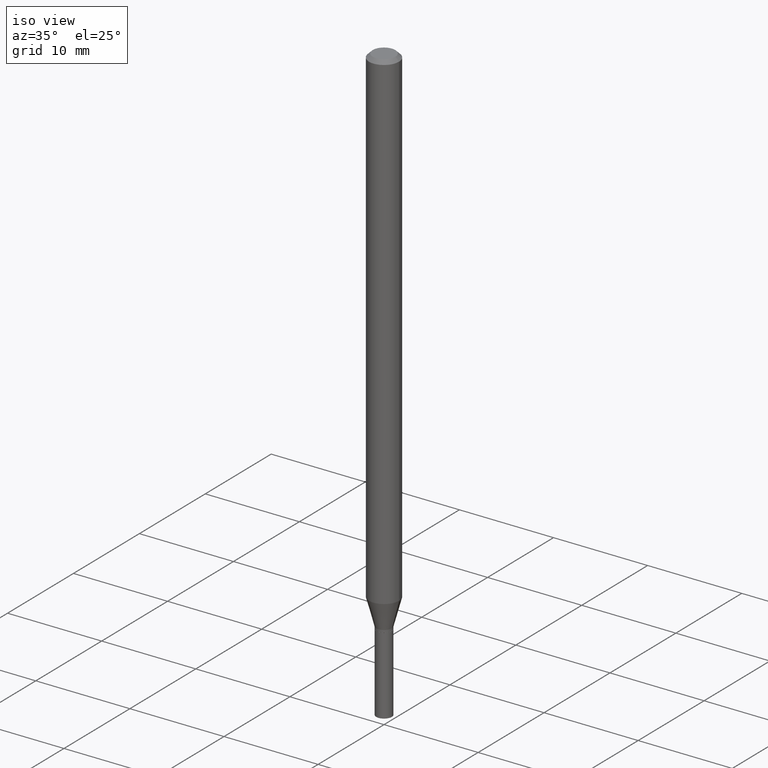
[diagram: clean part render]
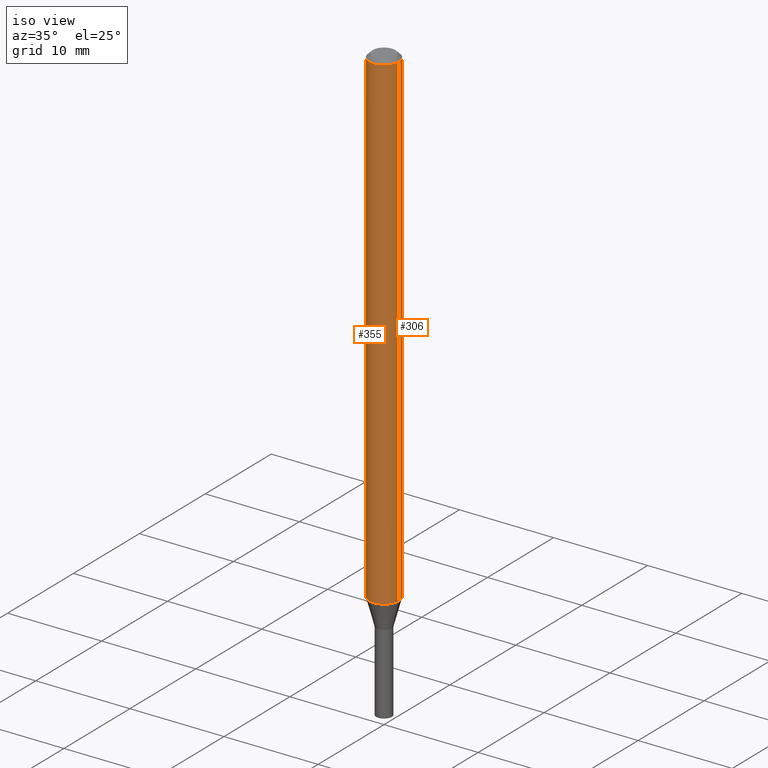
[diagram: same view with one multi-face feature highlighted, each face labeled with its STEP entity id]
A machine part, iso view. The highlighted faces form ONE feature: a constant-radius fillet chain: 2 tangent blend faces with common blend radius 1.5875 mm. The faces share edges in the B-rep.
Their STEP definitions:
[1] entity #306 (Cylinder):
#9 = FACE_OUTER_BOUND ( 'NONE', #294, .T. ) ;
#16 = DIRECTION ( 'NONE',  ( -2.445468806185136597E-29, 3.491481338843145583E-15, 1.000000000000000000 ) ) ;
#18 = EDGE_CURVE ( 'NONE', #178, #339, #29, .T. ) ;
#29 = LINE ( 'NONE', #74, #189 ) ;
#52 = ORIENTED_EDGE ( 'NONE', *, *, #440, .F. ) ;
#74 = CARTESIAN_POINT ( 'NONE',  ( -0.06250000000000000000, 4.440892098500626162E-16, -3.074334431409316114E-30 ) ) ;
#81 = CARTESIAN_POINT ( 'NONE',  ( 0.000000000000000000, 0.000000000000000000, 0.000000000000000000 ) ) ;
#96 = VERTEX_POINT ( 'NONE', #247 ) ;
#113 = CYLINDRICAL_SURFACE ( 'NONE', #458, 0.06250000000000000000 ) ;
#114 = CIRCLE ( 'NONE', #172, 0.06250000000000000000 ) ;
#115 = ORIENTED_EDGE ( 'NONE', *, *, #323, .T. ) ;
#119 = LINE ( 'NONE', #415, #245 ) ;
#124 = CIRCLE ( 'NONE', #246, 0.06250000000000000000 ) ;
#125 = CARTESIAN_POINT ( 'NONE',  ( 3.668203209277705088E-31, -5.237222008264718399E-17, -0.01499999999999999944 ) ) ;
#151 = DIRECTION ( 'NONE',  ( 1.000000000000000000, -6.982962677686262766E-15, 0.000000000000000000 ) ) ;
#160 = DIRECTION ( 'NONE',  ( -2.445468806185136877E-29, 3.491481338843145188E-15, 1.000000000000000000 ) ) ;
#172 = AXIS2_PLACEMENT_3D ( 'NONE', #125, #420, #312 ) ;
#176 = DIRECTION ( 'NONE',  ( -2.445468806185136597E-29, 3.491481338843145583E-15, 1.000000000000000000 ) ) ;
#178 = VERTEX_POINT ( 'NONE', #283 ) ;
#185 = CARTESIAN_POINT ( 'NONE',  ( 0.06250000000000000000, -4.888073874380388472E-16, -0.01499999999999999944 ) ) ;
#189 = VECTOR ( 'NONE', #466, 39.37007874015748143 ) ;
#228 = ORIENTED_EDGE ( 'NONE', *, *, #394, .F. ) ;
#245 = VECTOR ( 'NONE', #160, 39.37007874015748143 ) ;
#246 = AXIS2_PLACEMENT_3D ( 'NONE', #372, #176, #151 ) ;
#247 = CARTESIAN_POINT ( 'NONE',  ( 0.06250000000000000000, -7.604580693443568046E-15, -2.053038475772934746 ) ) ;
#283 = CARTESIAN_POINT ( 'NONE',  ( -0.06250000000000000000, -6.724056316238114549E-15, -2.053038475772934746 ) ) ;
#294 = EDGE_LOOP ( 'NONE', ( #115, #417, #52, #228 ) ) ;
#306 = ADVANCED_FACE ( 'NONE', ( #9 ), #113, .T. ) ;
#312 = DIRECTION ( 'NONE',  ( 1.000000000000000000, -6.982962677686266711E-15, 0.000000000000000000 ) ) ;
#323 = EDGE_CURVE ( 'NONE', #96, #178, #124, .T. ) ;
#339 = VERTEX_POINT ( 'NONE', #365 ) ;
#365 = CARTESIAN_POINT ( 'NONE',  ( -0.06250000000000000000, -3.166169663235349703E-15, -0.01499999999999999944 ) ) ;
#368 = DIRECTION ( 'NONE',  ( 1.000000000000000000, -6.982962677686266711E-15, 4.876176775795935793E-29 ) ) ;
#372 = CARTESIAN_POINT ( 'NONE',  ( 5.020641550400591076E-29, -7.168145526088176377E-15, -2.053038475772934746 ) ) ;
#379 = VERTEX_POINT ( 'NONE', #185 ) ;
#394 = EDGE_CURVE ( 'NONE', #96, #379, #119, .T. ) ;
#415 = CARTESIAN_POINT ( 'NONE',  ( 0.06250000000000000000, -4.364351673553916694E-16, 3.047610484872459871E-30 ) ) ;
#417 = ORIENTED_EDGE ( 'NONE', *, *, #18, .T. ) ;
#420 = DIRECTION ( 'NONE',  ( -2.445468806185136597E-29, 3.491481338843145583E-15, 1.000000000000000000 ) ) ;
#440 = EDGE_CURVE ( 'NONE', #379, #339, #114, .T. ) ;
#458 = AXIS2_PLACEMENT_3D ( 'NONE', #81, #16, #368 ) ;
#466 = DIRECTION ( 'NONE',  ( -2.445468806185136877E-29, 3.491481338843145188E-15, 1.000000000000000000 ) ) ;
[2] entity #355 (Cylinder):
#11 = DIRECTION ( 'NONE',  ( 1.000000000000000000, -6.982962677686262766E-15, 0.000000000000000000 ) ) ;
#18 = EDGE_CURVE ( 'NONE', #178, #339, #29, .T. ) ;
#29 = LINE ( 'NONE', #74, #189 ) ;
#47 = CARTESIAN_POINT ( 'NONE',  ( 0.000000000000000000, 0.000000000000000000, 0.000000000000000000 ) ) ;
#53 = DIRECTION ( 'NONE',  ( 1.000000000000000000, -6.982962677686266711E-15, 4.876176775795935793E-29 ) ) ;
#55 = ORIENTED_EDGE ( 'NONE', *, *, #394, .T. ) ;
#74 = CARTESIAN_POINT ( 'NONE',  ( -0.06250000000000000000, 4.440892098500626162E-16, -3.074334431409316114E-30 ) ) ;
#77 = AXIS2_PLACEMENT_3D ( 'NONE', #47, #333, #53 ) ;
#95 = DIRECTION ( 'NONE',  ( 1.000000000000000000, -6.982962677686266711E-15, 0.000000000000000000 ) ) ;
#96 = VERTEX_POINT ( 'NONE', #247 ) ;
#109 = DIRECTION ( 'NONE',  ( -2.445468806185136597E-29, 3.491481338843145583E-15, 1.000000000000000000 ) ) ;
#119 = LINE ( 'NONE', #415, #245 ) ;
#128 = ORIENTED_EDGE ( 'NONE', *, *, #412, .F. ) ;
#129 = CARTESIAN_POINT ( 'NONE',  ( 3.668203209277705088E-31, -5.237222008264718399E-17, -0.01499999999999999944 ) ) ;
#157 = DIRECTION ( 'NONE',  ( -2.445468806185136597E-29, 3.491481338843145583E-15, 1.000000000000000000 ) ) ;
#160 = DIRECTION ( 'NONE',  ( -2.445468806185136877E-29, 3.491481338843145188E-15, 1.000000000000000000 ) ) ;
#178 = VERTEX_POINT ( 'NONE', #283 ) ;
#185 = CARTESIAN_POINT ( 'NONE',  ( 0.06250000000000000000, -4.888073874380388472E-16, -0.01499999999999999944 ) ) ;
#189 = VECTOR ( 'NONE', #466, 39.37007874015748143 ) ;
#201 = ORIENTED_EDGE ( 'NONE', *, *, #227, .T. ) ;
#204 = AXIS2_PLACEMENT_3D ( 'NONE', #329, #109, #11 ) ;
#221 = FACE_OUTER_BOUND ( 'NONE', #345, .T. ) ;
#227 = EDGE_CURVE ( 'NONE', #178, #96, #338, .T. ) ;
#245 = VECTOR ( 'NONE', #160, 39.37007874015748143 ) ;
#247 = CARTESIAN_POINT ( 'NONE',  ( 0.06250000000000000000, -7.604580693443568046E-15, -2.053038475772934746 ) ) ;
#283 = CARTESIAN_POINT ( 'NONE',  ( -0.06250000000000000000, -6.724056316238114549E-15, -2.053038475772934746 ) ) ;
#299 = ORIENTED_EDGE ( 'NONE', *, *, #18, .F. ) ;
#322 = AXIS2_PLACEMENT_3D ( 'NONE', #129, #157, #95 ) ;
#327 = CYLINDRICAL_SURFACE ( 'NONE', #77, 0.06250000000000000000 ) ;
#329 = CARTESIAN_POINT ( 'NONE',  ( 5.020641550400591076E-29, -7.168145526088176377E-15, -2.053038475772934746 ) ) ;
#333 = DIRECTION ( 'NONE',  ( -2.445468806185136597E-29, 3.491481338843145583E-15, 1.000000000000000000 ) ) ;
#338 = CIRCLE ( 'NONE', #204, 0.06250000000000000000 ) ;
#339 = VERTEX_POINT ( 'NONE', #365 ) ;
#345 = EDGE_LOOP ( 'NONE', ( #299, #201, #55, #128 ) ) ;
#355 = ADVANCED_FACE ( 'NONE', ( #221 ), #327, .T. ) ;
#365 = CARTESIAN_POINT ( 'NONE',  ( -0.06250000000000000000, -3.166169663235349703E-15, -0.01499999999999999944 ) ) ;
#379 = VERTEX_POINT ( 'NONE', #185 ) ;
#384 = CIRCLE ( 'NONE', #322, 0.06250000000000000000 ) ;
#394 = EDGE_CURVE ( 'NONE', #96, #379, #119, .T. ) ;
#412 = EDGE_CURVE ( 'NONE', #339, #379, #384, .T. ) ;
#415 = CARTESIAN_POINT ( 'NONE',  ( 0.06250000000000000000, -4.364351673553916694E-16, 3.047610484872459871E-30 ) ) ;
#466 = DIRECTION ( 'NONE',  ( -2.445468806185136877E-29, 3.491481338843145188E-15, 1.000000000000000000 ) ) ;